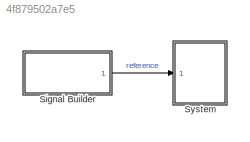
MODEL slx_4f879502a7e5
KIND model
CONFIG AbsTol = auto
CONFIG EnableMultiTasking = on
CONFIG FixedStep = auto
CONFIG MaxStep = 0.01
CONFIG MinStep = auto
CONFIG RelTol = 1e-4
CONFIG SampleTimeConstraint = Unconstrained
CONFIG Solver = VariableStepAuto
CONFIG SolverName = VariableStepAuto
CONFIG StartTime = 0.0
CONFIG StopTime = 10
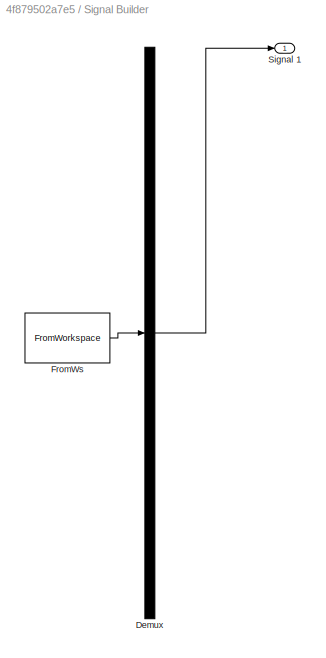
BLOCK [SubSystem] Signal Builder
  ClipboardFcn = sigbuilder_block('clipboard');
  CloseFcn = sigbuilder_block('close');
  ContinueFcn = sigbuilder_block('continue');
  CopyFcn = sigbuilder_block('copy');
  DeleteFcn = sigbuilder_block('delete');
  LoadFcn = sigbuilder_block('load');
  MaskHideContents = on
  ModelCloseFcn = sigbuilder_block('modelClose');
  NameChangeFcn = sigbuilder_block('namechange');
  OpenFcn = sigbuilder_block('open',[437.6 199.2 550.4 400 ]);
  PauseFcn = sigbuilder_block('pause');
  Ports = [0, 1]
  PreSaveFcn = sigbuilder_block('preSave');
  RequestExecContextInheritance = off
  StartFcn = sigbuilder_block('start');
  StopFcn = sigbuilder_block('stop');
  Tag = STV Subsys
BLOCK [Demux] Signal Builder/Demux
  DisplayOption = none
  Outputs = 1
  Ports = [1, 1]
  Tag = STV Demux
BLOCK [FromWorkspace] Signal Builder/FromWs
  Tag = STV FromWs
  VariableName = tuvar
BLOCK [Outport] Signal Builder/Signal 1
  Tag = STV Outport
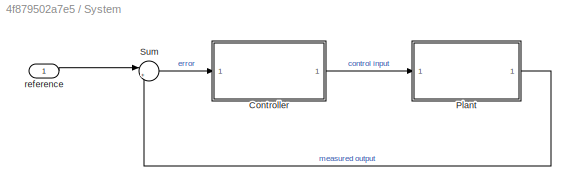
BLOCK [SubSystem] System
  Ports = [1]
  RequestExecContextInheritance = off
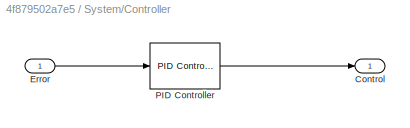
BLOCK [SubSystem] System/Controller
  Ports = [1, 1]
  RequestExecContextInheritance = off
BLOCK [Outport] System/Controller/Control
BLOCK [Inport] System/Controller/Error
BLOCK [Reference] System/Controller/PID Controller  REF=simulink/Continuous/PID Controller
  Ports = [1, 1]
  SourceBlock = simulink/Continuous/PID Controller
  SourceProductBaseCode = SL
  SourceType = PID 1dof
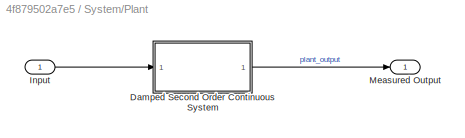
BLOCK [SubSystem] System/Plant
  Ports = [1, 1]
  RequestExecContextInheritance = off
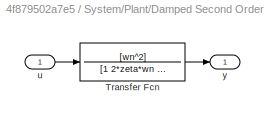
BLOCK [SubSystem] System/Plant/Damped Second Order Continuous System
  Ports = [1, 1]
  RequestExecContextInheritance = off
BLOCK [TransferFcn] System/Plant/Damped Second Order Continuous System/Transfer Fcn
  Denominator = [1 2*zeta*wn wn^2]
  Numerator = [wn^2]
BLOCK [Inport] System/Plant/Damped Second Order Continuous System/u
BLOCK [Outport] System/Plant/Damped Second Order Continuous System/y
BLOCK [Inport] System/Plant/Input
BLOCK [Outport] System/Plant/Measured Output
BLOCK [Sum] System/Sum
  Inputs = |+-
  Ports = [2, 1]
BLOCK [Inport] System/reference
LINE Signal Builder:1 -> System:1
LINE System/Controller/Error:1 -> System/Controller/PID Controller:1
LINE System/Controller/PID Controller:1 -> System/Controller/Control:1
LINE System/Controller:1 -> System/Plant:1
LINE System/Plant/Damped Second Order Continuous System/Transfer Fcn:1 -> System/Plant/Damped Second Order Continuous System/y:1
LINE System/Plant/Damped Second Order Continuous System/u:1 -> System/Plant/Damped Second Order Continuous System/Transfer Fcn:1
LINE System/Plant/Damped Second Order Continuous System:1 -> System/Plant/Measured Output:1
LINE System/Plant/Input:1 -> System/Plant/Damped Second Order Continuous System:1
LINE System/Plant:1 -> System/Sum:2
LINE System/Sum:1 -> System/Controller:1
LINE System/reference:1 -> System/Sum:1
